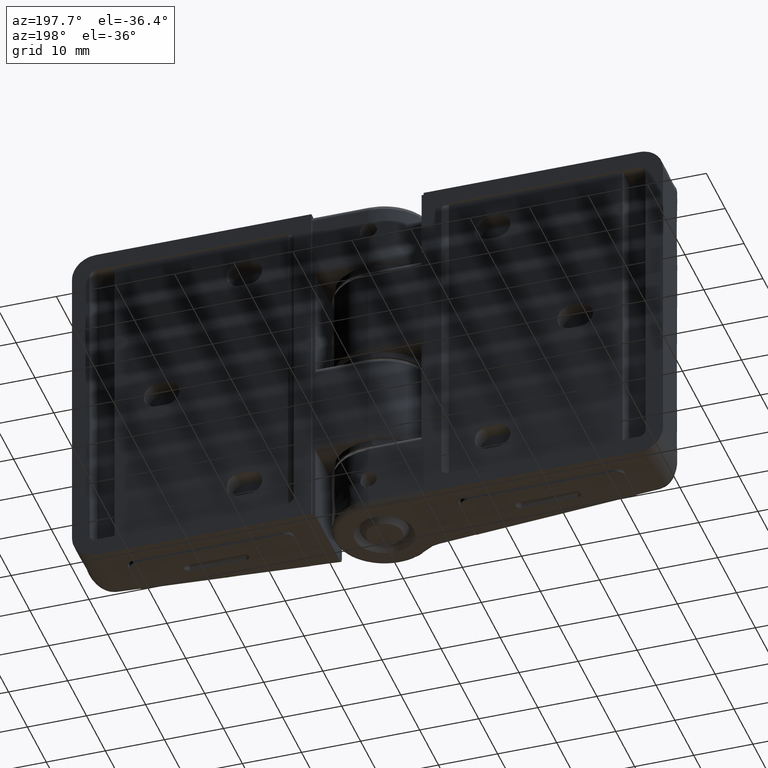
[diagram: clean part render]
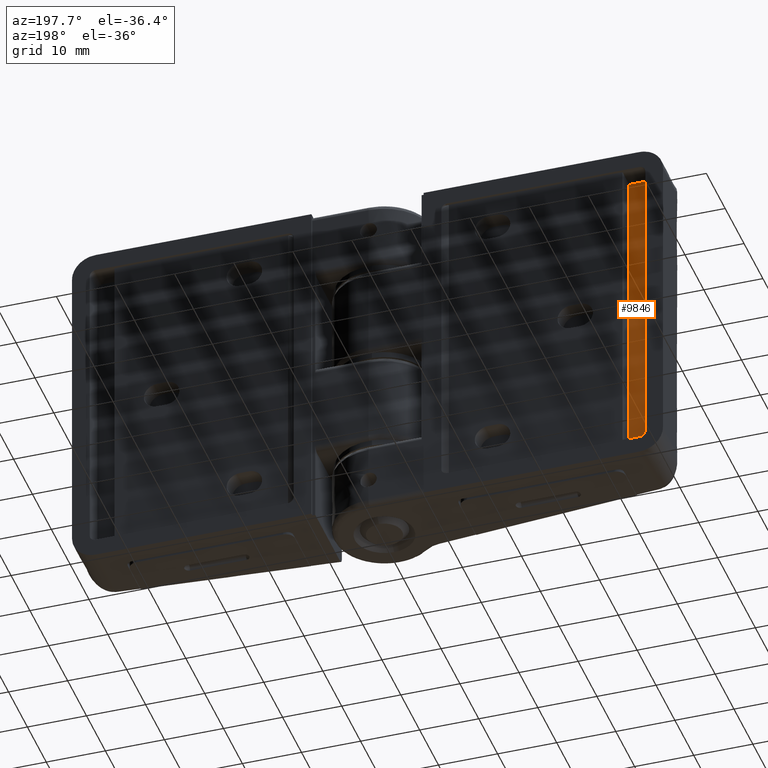
[diagram: same view with one face highlighted and labeled with its STEP entity id]
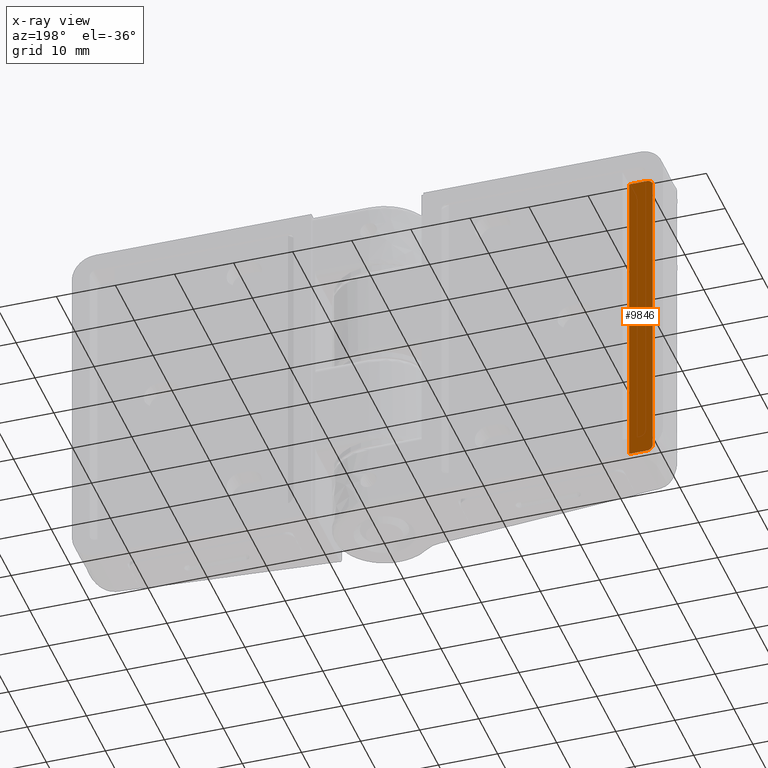
[diagram: x-ray of the same camera — body ghosted, the highlighted face saturated]
A machine part, auxiliary view. The second image highlights one B-rep face of the part: STEP entity #9846.
The next image is the same camera in x-ray: the body ghosted, the highlighted face saturated — about 0% of this face is hidden behind the body in this view.
In plain terms, the highlighted face is a freeform B-spline surface patch.
Its self-contained STEP definition (entity closure, byte-faithful):
#9779=CARTESIAN_POINT('',(-47.199799992247229,5.0,59.697299895337530));
#9780=CARTESIAN_POINT('',(-42.800199900464420,5.0,59.697299895337530));
#9781=CARTESIAN_POINT('',(-47.199799992247229,5.0,0.302698656269608));
#9782=CARTESIAN_POINT('',(-42.800199900464420,5.0,0.302698656269608));
#9783=B_SPLINE_SURFACE_WITH_KNOTS('',1,1,((#9779,#9781),(#9780,#9782)),.UNSPECIFIED.,.F.,.F.,.U.,(2,2),(2,2),(0.0,4.399600091782808),(0.0,59.394601239067917),.UNSPECIFIED.);
#9784=CARTESIAN_POINT('',(-45.999999947640198,5.0,57.0));
#9785=VERTEX_POINT('',#9784);
#9786=CARTESIAN_POINT('',(-43.0,5.0,57.0));
#9787=VERTEX_POINT('',#9786);
#9788=CARTESIAN_POINT('',(-45.999999947640198,5.0,57.0));
#9789=CARTESIAN_POINT('',(-43.0,5.0,57.0));
#9790=QUASI_UNIFORM_CURVE('',1,(#9788,#9789),.UNSPECIFIED.,.F.,.U.);
#9791=EDGE_CURVE('',#9785,#9787,#9790,.T.);
#9792=ORIENTED_EDGE('',*,*,#9791,.T.);
#9793=CARTESIAN_POINT('',(-43.0,5.0,3.0));
#9794=VERTEX_POINT('',#9793);
#9795=CARTESIAN_POINT('',(-43.0,5.0,57.0));
#9796=CARTESIAN_POINT('',(-43.0,5.0,3.0));
#9797=QUASI_UNIFORM_CURVE('',1,(#9795,#9796),.UNSPECIFIED.,.F.,.U.);
#9798=EDGE_CURVE('',#9787,#9794,#9797,.T.);
#9799=ORIENTED_EDGE('',*,*,#9798,.T.);
#9800=CARTESIAN_POINT('',(-46.0,5.0,3.0));
#9801=VERTEX_POINT('',#9800);
#9802=CARTESIAN_POINT('',(-43.0,5.0,3.0));
#9803=CARTESIAN_POINT('',(-46.0,5.0,3.0));
#9804=QUASI_UNIFORM_CURVE('',1,(#9802,#9803),.UNSPECIFIED.,.F.,.U.);
#9805=EDGE_CURVE('',#9794,#9801,#9804,.T.);
#9806=ORIENTED_EDGE('',*,*,#9805,.T.);
#9807=CARTESIAN_POINT('',(-47.0,5.0,4.0));
#9808=VERTEX_POINT('',#9807);
#9809=CARTESIAN_POINT('',(-47.0,5.0,4.0));
#9810=CARTESIAN_POINT('',(-47.000000000000007,5.000000000000001,3.0));
#9811=CARTESIAN_POINT('',(-46.0,5.0,3.0));
#9819=(BOUNDED_CURVE()B_SPLINE_CURVE(2,(#9809,#9810,#9811),.UNSPECIFIED.,.F.,.U.)CURVE()GEOMETRIC_REPRESENTATION_ITEM()QUASI_UNIFORM_CURVE()RATIONAL_B_SPLINE_CURVE((1.0,0.707106781186548,1.0))REPRESENTATION_ITEM(''));
#9820=EDGE_CURVE('',#9808,#9801,#9819,.T.);
#9821=ORIENTED_EDGE('',*,*,#9820,.F.);
#9822=CARTESIAN_POINT('',(-47.0,5.0,56.0));
#9823=VERTEX_POINT('',#9822);
#9824=CARTESIAN_POINT('',(-47.0,5.0,4.0));
#9825=CARTESIAN_POINT('',(-47.0,5.0,56.0));
#9826=QUASI_UNIFORM_CURVE('',1,(#9824,#9825),.UNSPECIFIED.,.F.,.U.);
#9827=EDGE_CURVE('',#9808,#9823,#9826,.T.);
#9828=ORIENTED_EDGE('',*,*,#9827,.T.);
#9829=CARTESIAN_POINT('',(-45.999999947640198,5.0,57.0));
#9830=CARTESIAN_POINT('',(-46.414213525349119,5.0,57.000000021688138));
#9831=CARTESIAN_POINT('',(-46.707106762674563,5.0,56.707106799698543));
#9832=CARTESIAN_POINT('',(-47.000000000000007,5.0,56.414213577708928));
#9833=CARTESIAN_POINT('',(-47.0,5.0,56.0));
#9841=(BOUNDED_CURVE()B_SPLINE_CURVE(2,(#9829,#9830,#9831,#9832,#9833),.UNSPECIFIED.,.F.,.U.)B_SPLINE_CURVE_WITH_KNOTS((3,2,3),(0.0,0.500000000000000,1.0),.UNSPECIFIED.)CURVE()GEOMETRIC_REPRESENTATION_ITEM()RATIONAL_B_SPLINE_CURVE((1.0,0.923879527501979,1.0,0.923879527501979,1.0))REPRESENTATION_ITEM(''));
#9842=EDGE_CURVE('',#9785,#9823,#9841,.T.);
#9843=ORIENTED_EDGE('',*,*,#9842,.F.);
#9844=EDGE_LOOP('',(#9792,#9799,#9806,#9821,#9828,#9843));
#9845=FACE_OUTER_BOUND('',#9844,.T.);
#9846=ADVANCED_FACE('',(#9845),#9783,.T.);